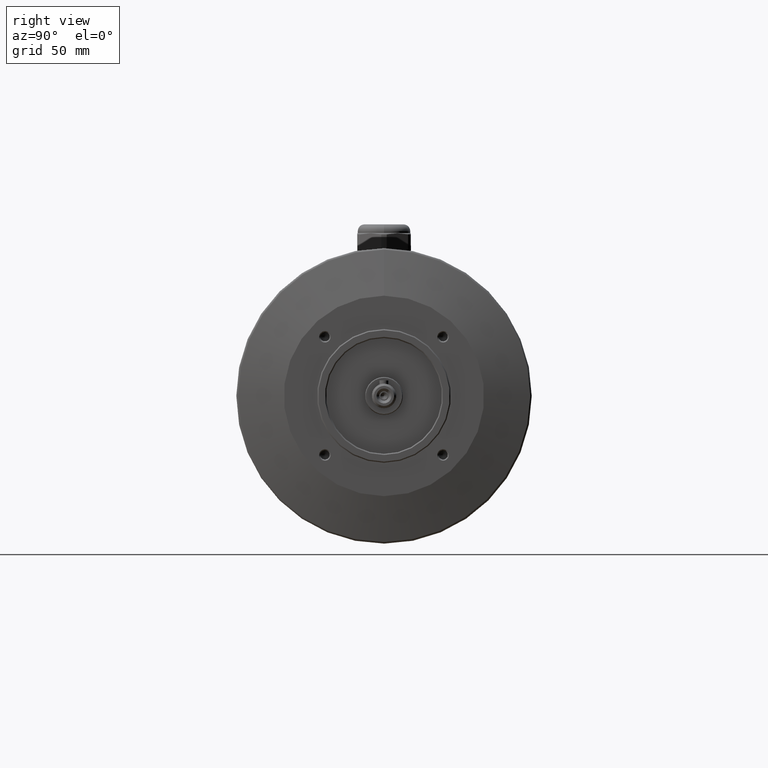
[diagram: clean part render]
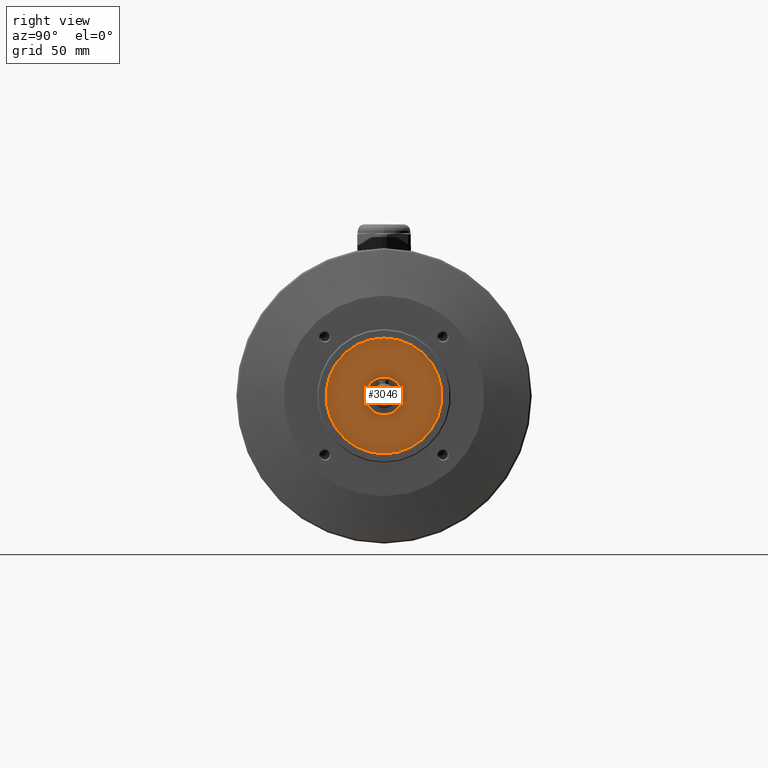
[diagram: same view with one face highlighted and labeled with its STEP entity id]
A machine part, right view. The second image highlights one B-rep face of the part: STEP entity #3046.
In plain terms, the highlighted planar face has unit normal (1, 0, 0).
Its self-contained STEP definition (entity closure, byte-faithful):
#63=PLANE('',#3248);
#191=CIRCLE('',#3247,26.);
#192=CIRCLE('',#3249,8.5);
#336=ORIENTED_EDGE('',*,*,#831,.T.);
#337=ORIENTED_EDGE('',*,*,#830,.F.);
#830=EDGE_CURVE('',#1081,#1081,#191,.T.);
#831=EDGE_CURVE('',#1082,#1082,#192,.T.);
#1081=VERTEX_POINT('',#4264);
#1082=VERTEX_POINT('',#4267);
#1499=EDGE_LOOP('',(#336));
#1500=EDGE_LOOP('',(#337));
#1736=FACE_BOUND('',#1499,.T.);
#1737=FACE_BOUND('',#1500,.T.);
#3046=ADVANCED_FACE('',(#1736,#1737),#63,.T.);
#3247=AXIS2_PLACEMENT_3D('',#4263,#3606,#3607);
#3248=AXIS2_PLACEMENT_3D('',#4265,#3608,#3609);
#3249=AXIS2_PLACEMENT_3D('',#4266,#3610,#3611);
#3606=DIRECTION('',(-1.,0.,0.));
#3607=DIRECTION('',(0.,0.,1.));
#3608=DIRECTION('',(1.,0.,0.));
#3609=DIRECTION('',(0.,0.,-1.));
#3610=DIRECTION('',(-1.,0.,0.));
#3611=DIRECTION('',(0.,0.,1.));
#4263=CARTESIAN_POINT('',(-5.50000000000001,0.,0.));
#4264=CARTESIAN_POINT('',(-5.50000000000001,0.,26.));
#4265=CARTESIAN_POINT('',(-5.5,0.,26.));
#4266=CARTESIAN_POINT('',(-5.50000000000001,0.,0.));
#4267=CARTESIAN_POINT('',(-5.50000000000001,0.,8.5));